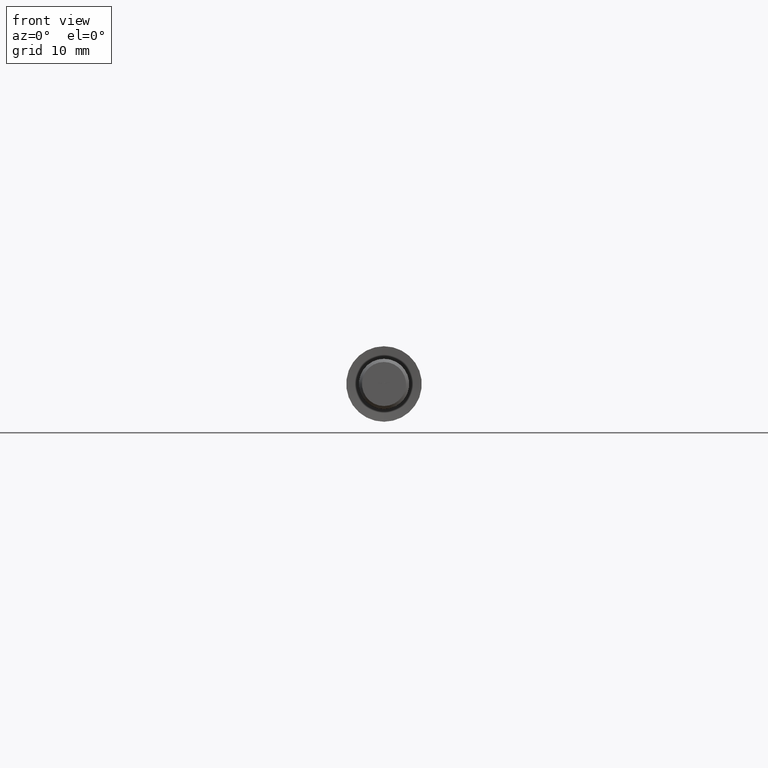
[diagram: clean part render]
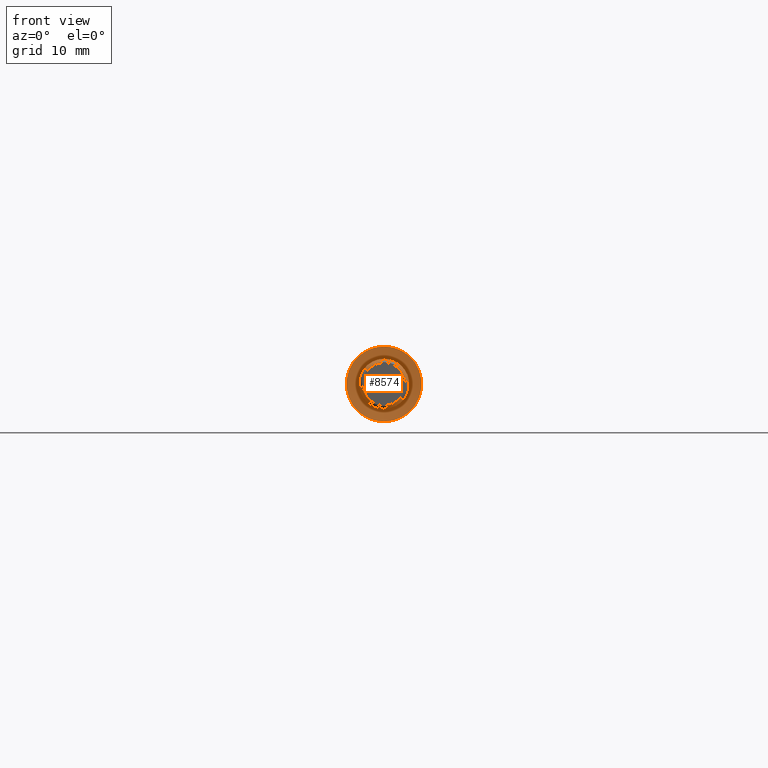
[diagram: same view with one face highlighted and labeled with its STEP entity id]
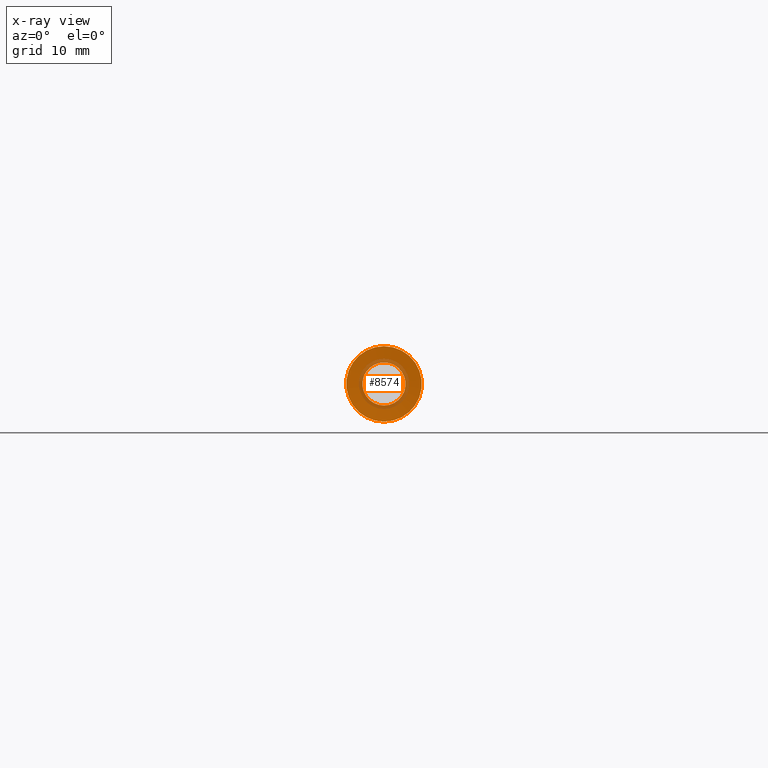
[diagram: x-ray of the same camera — body ghosted, the highlighted face saturated]
A machine part, front view. The second image highlights one B-rep face of the part: STEP entity #8574.
The next image is the same camera in x-ray: the body ghosted, the highlighted face saturated — about 18% of this face is hidden behind the body in this view.
In plain terms, the highlighted conical surface has half-angle 85 deg.
Its self-contained STEP definition (entity closure, byte-faithful):
#1618 = ORIENTED_EDGE ( 'NONE', *, *, #9575, .T. ) ;
#1767 = DIRECTION ( 'NONE',  ( -0.000000000000000000, -1.000000000000000000, -0.000000000000000000 ) ) ;
#2028 = EDGE_CURVE ( 'NONE', #8627, #8627, #10702, .T. ) ;
#2891 = CARTESIAN_POINT ( 'NONE',  ( 0.000000000000000000, 0.2253502873125028116, 0.000000000000000000 ) ) ;
#3383 = CARTESIAN_POINT ( 'NONE',  ( 0.000000000000000000, 0.000000000000000000, -6.000000000000003553 ) ) ;
#3452 = AXIS2_PLACEMENT_3D ( 'NONE', #9606, #10594, #5646 ) ;
#3889 = CIRCLE ( 'NONE', #3452, 6.000000000000003553 ) ;
#3958 = CARTESIAN_POINT ( 'NONE',  ( 0.000000000000000000, 0.2253502873125028116, 0.000000000000000000 ) ) ;
#4389 = CARTESIAN_POINT ( 'NONE',  ( 0.000000000000000000, 0.2253502873125028116, -3.424234429575815142 ) ) ;
#5627 = FACE_BOUND ( 'NONE', #12370, .T. ) ;
#5646 = DIRECTION ( 'NONE',  ( 0.000000000000000000, 0.000000000000000000, -1.000000000000000000 ) ) ;
#5880 = AXIS2_PLACEMENT_3D ( 'NONE', #3958, #7038, #11016 ) ;
#6684 = CONICAL_SURFACE ( 'NONE', #5880, 3.424234429575815142, 1.483529864195179737 ) ;
#6905 = AXIS2_PLACEMENT_3D ( 'NONE', #2891, #1767, #12717 ) ;
#7038 = DIRECTION ( 'NONE',  ( -0.000000000000000000, -1.000000000000000000, -0.000000000000000000 ) ) ;
#8147 = EDGE_LOOP ( 'NONE', ( #1618 ) ) ;
#8574 = ADVANCED_FACE ( 'NONE', ( #10757, #5627 ), #6684, .F. ) ;
#8627 = VERTEX_POINT ( 'NONE', #4389 ) ;
#9575 = EDGE_CURVE ( 'NONE', #11741, #11741, #3889, .T. ) ;
#9606 = CARTESIAN_POINT ( 'NONE',  ( 0.000000000000000000, 0.000000000000000000, 0.000000000000000000 ) ) ;
#10342 = ORIENTED_EDGE ( 'NONE', *, *, #2028, .F. ) ;
#10594 = DIRECTION ( 'NONE',  ( -0.000000000000000000, -1.000000000000000000, -0.000000000000000000 ) ) ;
#10702 = CIRCLE ( 'NONE', #6905, 3.424234429575815142 ) ;
#10757 = FACE_OUTER_BOUND ( 'NONE', #8147, .T. ) ;
#11016 = DIRECTION ( 'NONE',  ( 0.000000000000000000, 0.000000000000000000, -1.000000000000000000 ) ) ;
#11741 = VERTEX_POINT ( 'NONE', #3383 ) ;
#12370 = EDGE_LOOP ( 'NONE', ( #10342 ) ) ;
#12717 = DIRECTION ( 'NONE',  ( 0.000000000000000000, 0.000000000000000000, -1.000000000000000000 ) ) ;